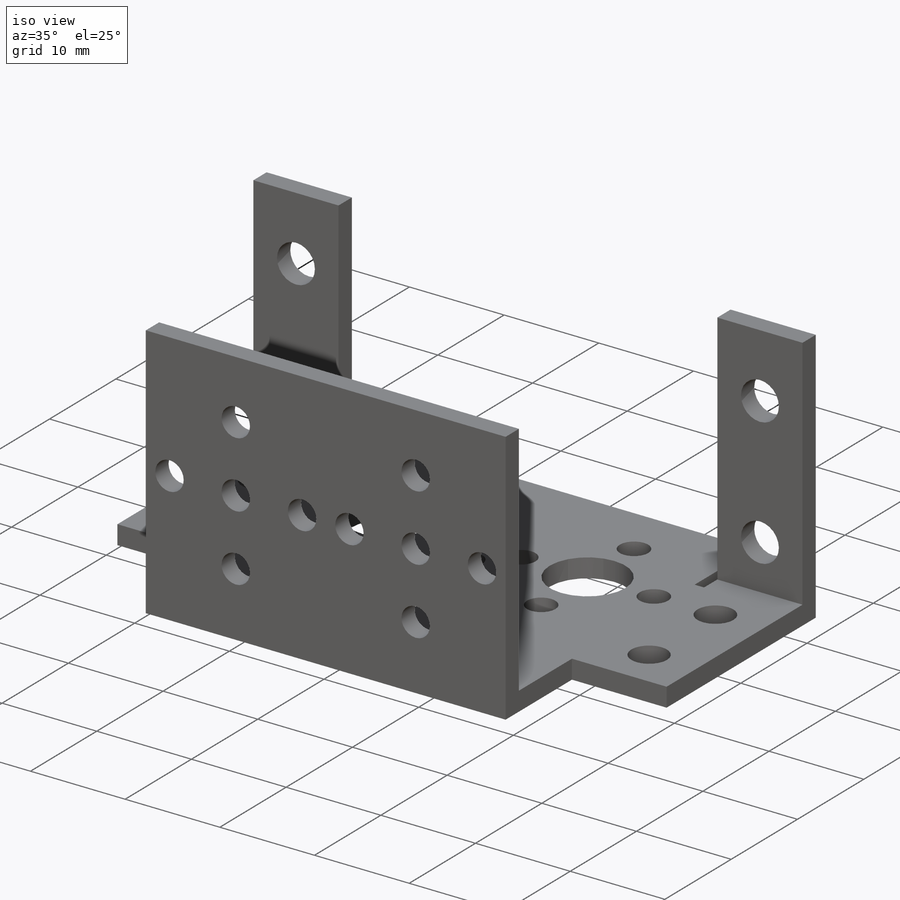
[diagram: iso view]
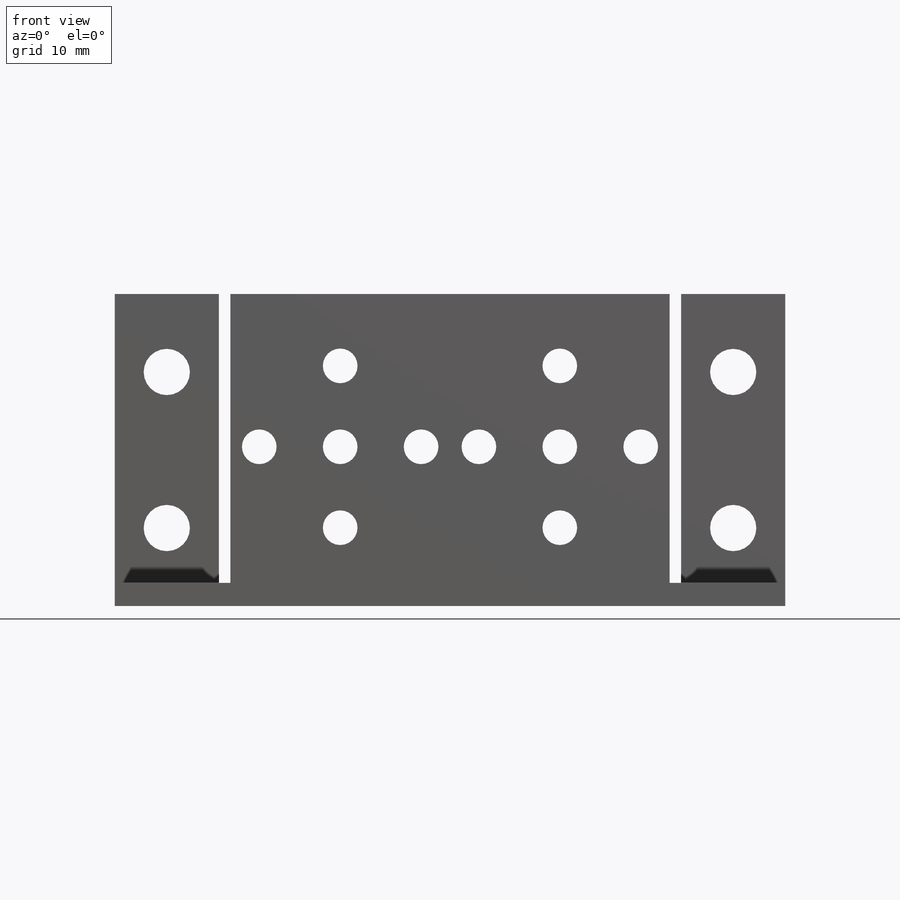
[diagram: front view]
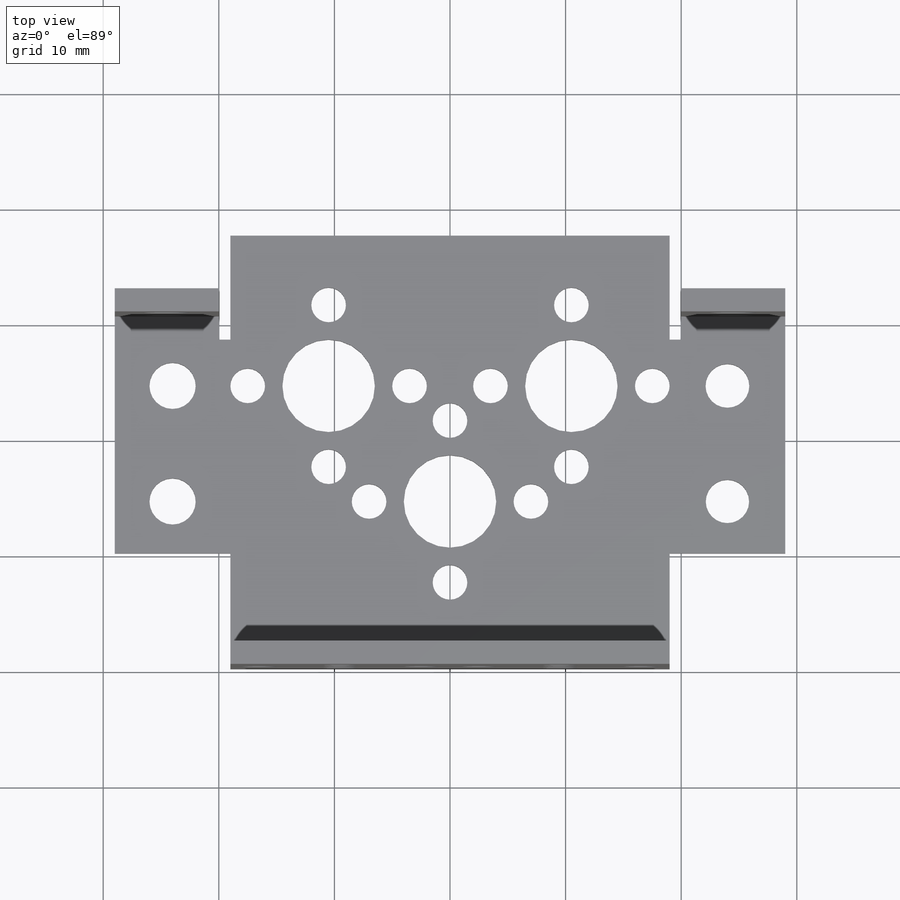
[diagram: top view]
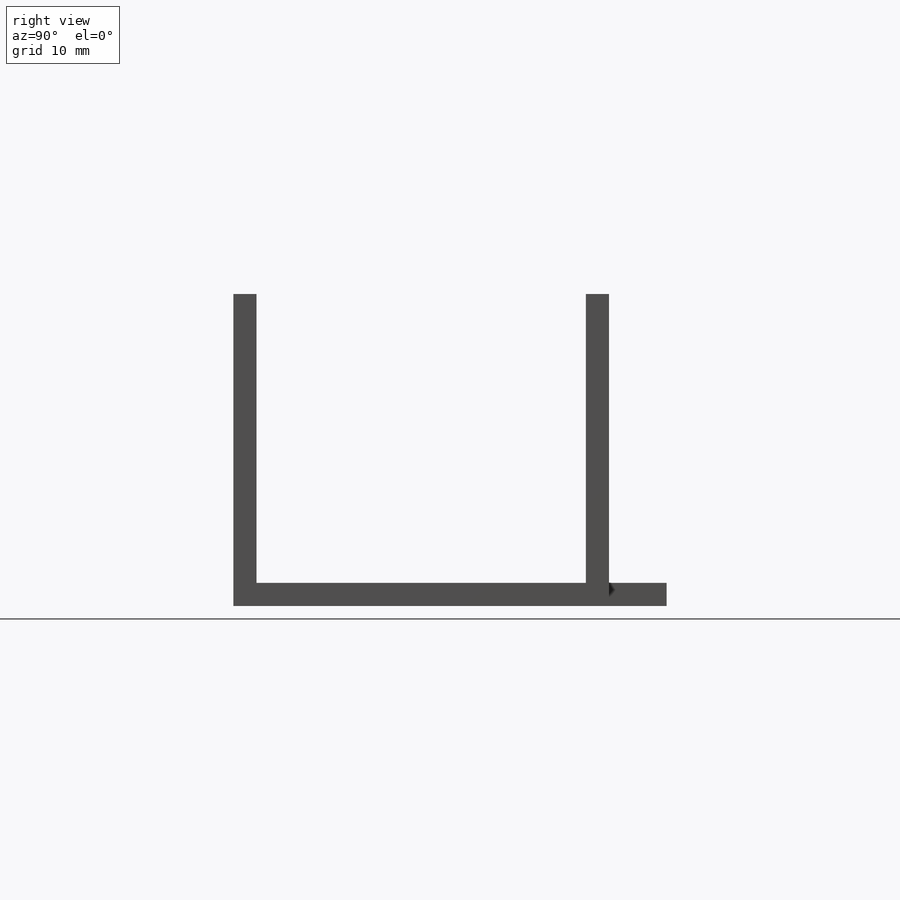
[diagram: right view]
SOLIDWORKS PART (.sldprt)
format: sldprt  version: not decoded by parser v0  size: 482,304 bytes
history: native  units: mm
features: sketch x8, extrude x4, cut_extrude x4, fillet x4, material x1 (+13 scaffold rows collapsed)
feature tree (34):
  scaffold x13  (default folders/planes/origin — collapsed)
  material  "Material <not specified>"
  sketch  "Sketch1"  dims[D1=38.0mm D2=35.49mm]
  extrude  "Boss-Extrude1"  Depth=2mm
  sketch  "Sketch3"  dims[c1.D1=28.5mm c1.D2=8.0mm c1.D3=58.0mm c1.D4=29.0mm c1.D5=~30.593545mm c2.D4=29.0mm c2.D5=38.0mm]
  extrude  "Boss-Extrude2"  Depth=2mm
  sketch  "Sketch4"  dims[c1.D1=14.0mm c1.D2=14.0mm c1.D3=8.0mm c1.D4=8.0mm c1.D5=8.0mm c1.D8=3.0mm c1.D9=3.0mm c1.D10=3.0mm c1.D11=3.0mm c1.D12=3.0mm c1.D13=3.0mm c1.D14=3.0mm c1.D15=3.0mm c1.D18=3.0mm c1.D19=3.0mm c1.D20=3.0mm c1.D21=3.0mm c1.D22=4.0mm c1.D23=4.0mm c2.D1=38.0mm c2.D6=21.0mm c2.D7=10.5mm c2.D16=22.5mm c2.D17=10.0mm c2.D24=5.0mm c2.D25=5.0mm c2.D26=10.0mm c2.D27=5.0mm c2.D28=~6.926317mm c3.D27=11.5mm c3.D28=0.0mm c3.D29=5.0mm c3.D30=5.0mm c3.D31=7.0mm c3.D32=0.0mm c3.D33=7.0mm c3.D34=7.0mm c3.D35=7.0mm c3.D36=7.0mm c3.D37=7.0mm c4.D36=7.0mm c4.D37=7.0mm c4.D38=7.0mm c4.D39=7.0mm c4.D40=7.0mm c4.D41=7.0mm c4.D42=7.0mm c5.D36=90.0deg]
  cut_extrude  "Cut-Extrude1"  Depth=2mm
  sketch  "Sketch6"  dims[D1=27.0mm D2=38.0mm]
  extrude  "Boss-Extrude3"  Depth=2mm
  sketch  "Sketch7"  dims[c1.D1=3.0mm c1.D2=3.0mm c1.D3=3.0mm c1.D4=3.0mm c1.D5=3.0mm c1.D6=3.0mm c1.D7=~2.712621mm c2.D7=3.0mm c2.D8=3.0mm c2.D9=3.0mm c2.D10=3.0mm c2.D11=9.5mm c2.D12=9.5mm c2.D13=7.0mm c2.D14=0.0mm c2.D15=7.0mm c2.D16=7.0mm c2.D17=7.0mm c2.D18=0.0mm c2.D19=7.0mm c2.D20=7.0mm c2.D21=7.0mm c2.D22=7.0mm c2.D23=0.0mm c2.D24=0.0mm]
  cut_extrude  "Cut-Extrude2"  Depth=2mm
  sketch  "Sketch8"  dims[D1=9.0mm D2=27.0mm D3=9.0mm D4=27.0mm]
  extrude  "Boss-Extrude4"  Depth=2mm
  sketch  "Sketch9"  dims[c1.D1=4.0mm c1.D2=4.0mm c1.D7=4.0mm c1.D8=4.0mm c1.D3=4.5mm c1.D4=4.5mm c1.D5=~7.263195mm c2.D4=4.5mm c2.D5=6.75mm c2.D6=13.5mm c2.D9=4.5mm c2.D10=4.5mm c2.D11=6.75mm c2.D12=13.5mm]
  cut_extrude  "Cut-Extrude3"  Depth=2mm
  sketch  "Sketch10"  dims[D1=1.0mm D2=2.0mm D3=1.0mm D4=2.0mm]
  cut_extrude  "Cut-Extrude4"  Depth=2mm
  fillet  "Fillet2"  Radius=2mm
  fillet  "Fillet3"  Radius=2mm
  fillet  "Fillet4"  Radius=2mm
  fillet  "Fillet5"  Radius=1mm
decode coverage: 20 of 20 modeling features carry decoded parameters
note: ~ marks probable driven/reference dimensions
note: suppression state not decoded; provenance and decode notes live in map.json
